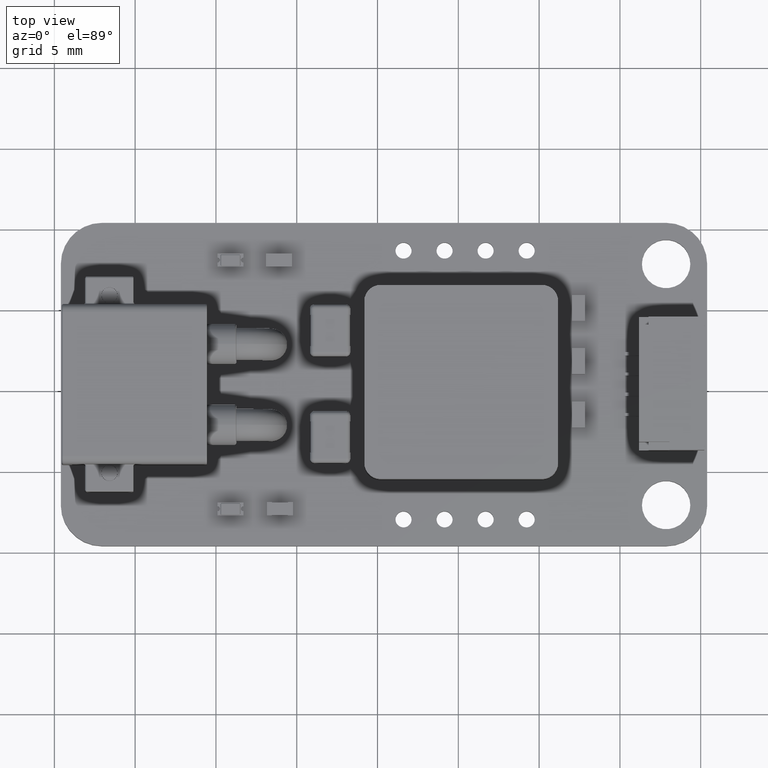
[diagram: clean part render]
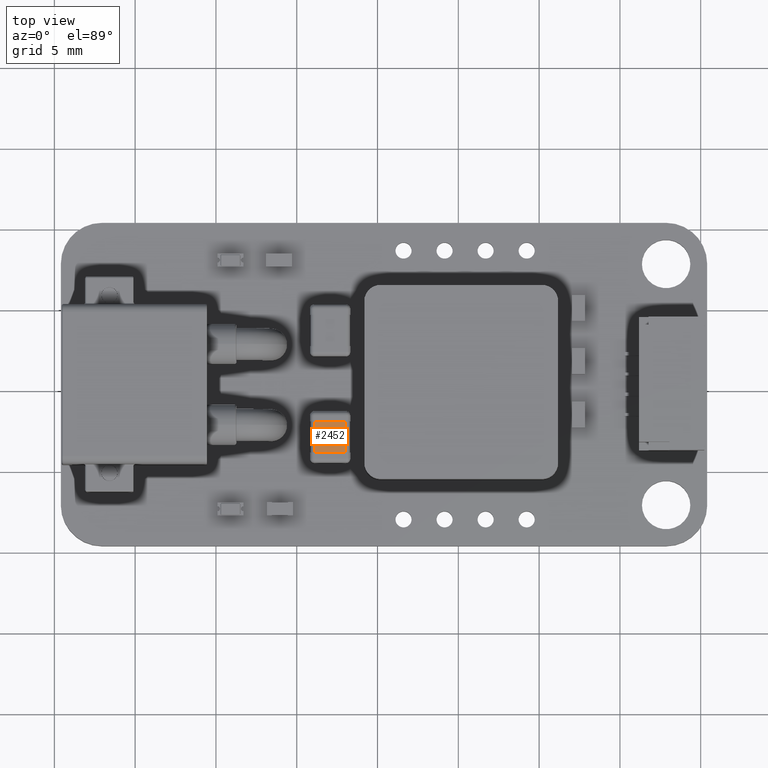
[diagram: same view with one face highlighted and labeled with its STEP entity id]
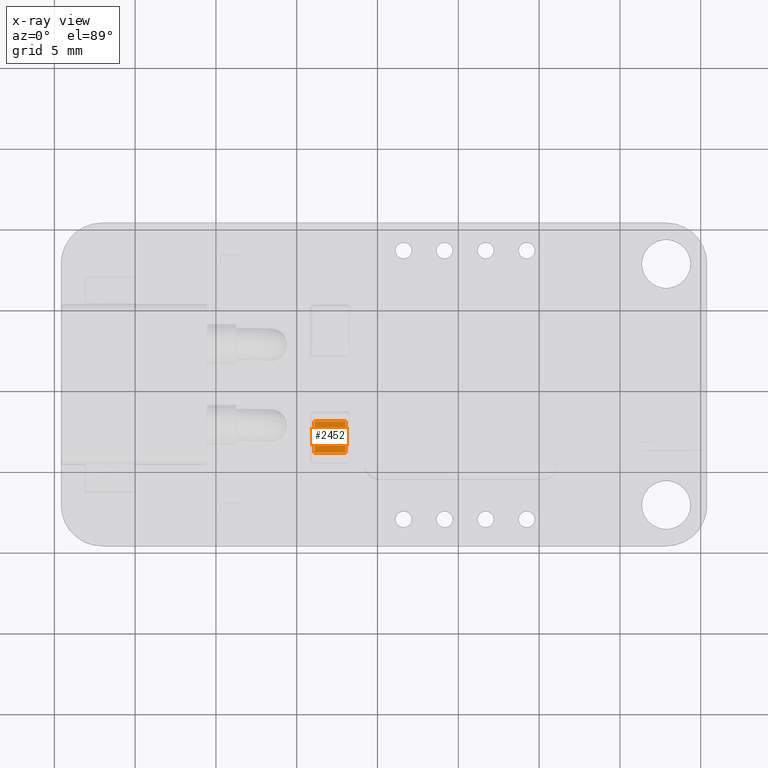
[diagram: x-ray of the same camera — body ghosted, the highlighted face saturated]
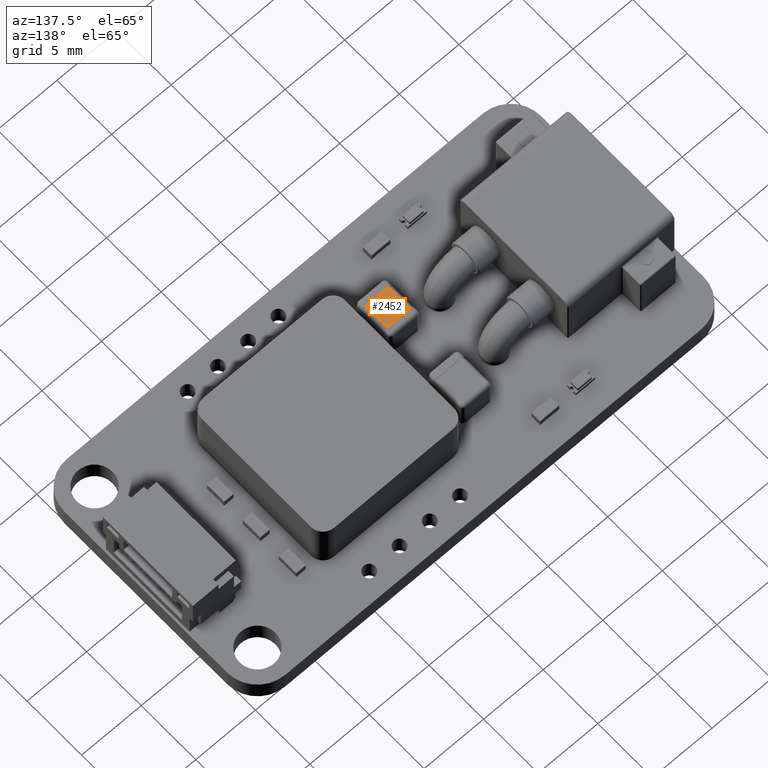
[diagram: same view with one face highlighted and labeled with its STEP entity id]
A machine part, top view. The second image highlights one B-rep face of the part: STEP entity #2452.
The next image is the same camera in x-ray: the body ghosted, the highlighted face saturated — about 0% of this face is hidden behind the body in this view.
A second angle (auxiliary view) of the same face is appended — the face is thin or edge-on in the first view.
In plain terms, the highlighted planar face has unit normal (0, 0, 1).
Its self-contained STEP definition (entity closure, byte-faithful):
#383 = ORIENTED_EDGE ( 'NONE', *, *, #15316, .T. ) ;
#1039 = ORIENTED_EDGE ( 'NONE', *, *, #21232, .T. ) ;
#1124 = CARTESIAN_POINT ( 'NONE',  ( 40.83628693789675879, 31.12299955814602015, 2.673000000000000043 ) ) ;
#1434 = DIRECTION ( 'NONE',  ( 1.192488099999999771E-08, -0.9999999999999998890, 0.000000000000000000 ) ) ;
#1451 = EDGE_LOOP ( 'NONE', ( #2925, #383, #1039, #17233 ) ) ;
#1612 = CARTESIAN_POINT ( 'NONE',  ( 41.10628691464324191, 33.07299956136574082, 2.673000000000000043 ) ) ;
#1635 = CARTESIAN_POINT ( 'NONE',  ( 43.01628693789675850, 31.12299958414225998, 2.673000000000000043 ) ) ;
#2221 = VECTOR ( 'NONE', #9623, 1000.000000000000114 ) ;
#2452 = ADVANCED_FACE ( 'NONE', ( #15543 ), #9969, .T. ) ;
#2925 = ORIENTED_EDGE ( 'NONE', *, *, #34540, .F. ) ;
#3658 = LINE ( 'NONE', #1124, #2221 ) ;
#6471 = DIRECTION ( 'NONE',  ( 0.000000000000000000, 0.000000000000000000, 1.000000000000000000 ) ) ;
#9462 = DIRECTION ( 'NONE',  ( 1.192488099999999771E-08, -0.9999999999999998890, 0.000000000000000000 ) ) ;
#9623 = DIRECTION ( 'NONE',  ( 0.9999999999999998890, 1.192488099999999771E-08, 0.000000000000000000 ) ) ;
#9969 = PLANE ( 'NONE',  #29381 ) ;
#11313 = VECTOR ( 'NONE', #9462, 1000.000000000000114 ) ;
#12471 = CARTESIAN_POINT ( 'NONE',  ( 40.83628691464324589, 33.07299955814602299, 2.673000000000000043 ) ) ;
#14850 = CARTESIAN_POINT ( 'NONE',  ( 43.01628691464324561, 33.07299958414225927, 2.673000000000000043 ) ) ;
#15316 = EDGE_CURVE ( 'NONE', #32637, #21254, #25232, .T. ) ;
#15543 = FACE_OUTER_BOUND ( 'NONE', #1451, .T. ) ;
#15609 = LINE ( 'NONE', #30094, #11313 ) ;
#17233 = ORIENTED_EDGE ( 'NONE', *, *, #37589, .F. ) ;
#18176 = DIRECTION ( 'NONE',  ( 0.9999999999999998890, 1.192488099999999771E-08, 0.000000000000000000 ) ) ;
#21232 = EDGE_CURVE ( 'NONE', #21254, #30011, #3658, .T. ) ;
#21254 = VERTEX_POINT ( 'NONE', #25506 ) ;
#21607 = VECTOR ( 'NONE', #1434, 1000.000000000000114 ) ;
#21769 = DIRECTION ( 'NONE',  ( 1.192488099999999771E-08, -0.9999999999999998890, 0.000000000000000000 ) ) ;
#25232 = LINE ( 'NONE', #1612, #21607 ) ;
#25506 = CARTESIAN_POINT ( 'NONE',  ( 41.10628693789676191, 31.12299956136573797, 2.673000000000000043 ) ) ;
#29381 = AXIS2_PLACEMENT_3D ( 'NONE', #12471, #6471, #21769 ) ;
#30011 = VERTEX_POINT ( 'NONE', #1635 ) ;
#30094 = CARTESIAN_POINT ( 'NONE',  ( 43.01628691464324561, 33.07299958414225927, 2.673000000000000043 ) ) ;
#32282 = LINE ( 'NONE', #32691, #36373 ) ;
#32637 = VERTEX_POINT ( 'NONE', #38021 ) ;
#32691 = CARTESIAN_POINT ( 'NONE',  ( 40.83628691464324589, 33.07299955814602299, 2.673000000000000043 ) ) ;
#34540 = EDGE_CURVE ( 'NONE', #32637, #37595, #32282, .T. ) ;
#36373 = VECTOR ( 'NONE', #18176, 1000.000000000000114 ) ;
#37589 = EDGE_CURVE ( 'NONE', #37595, #30011, #15609, .T. ) ;
#37595 = VERTEX_POINT ( 'NONE', #14850 ) ;
#38021 = CARTESIAN_POINT ( 'NONE',  ( 41.10628691464324191, 33.07299956136574082, 2.673000000000000043 ) ) ;